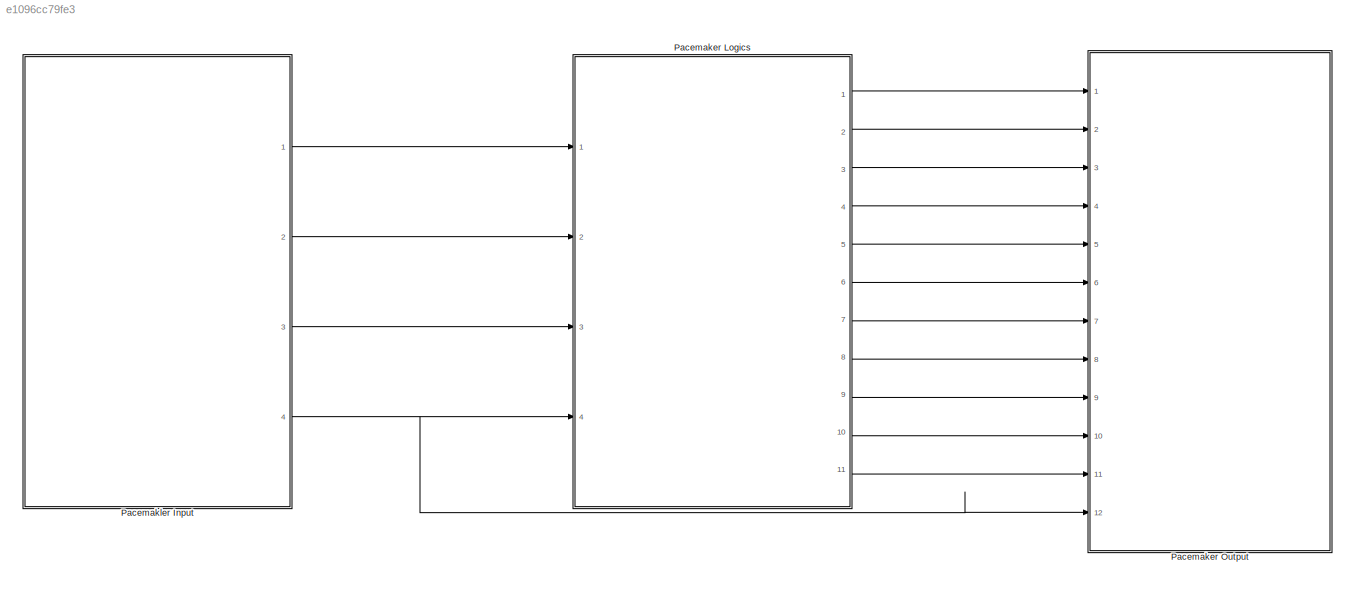
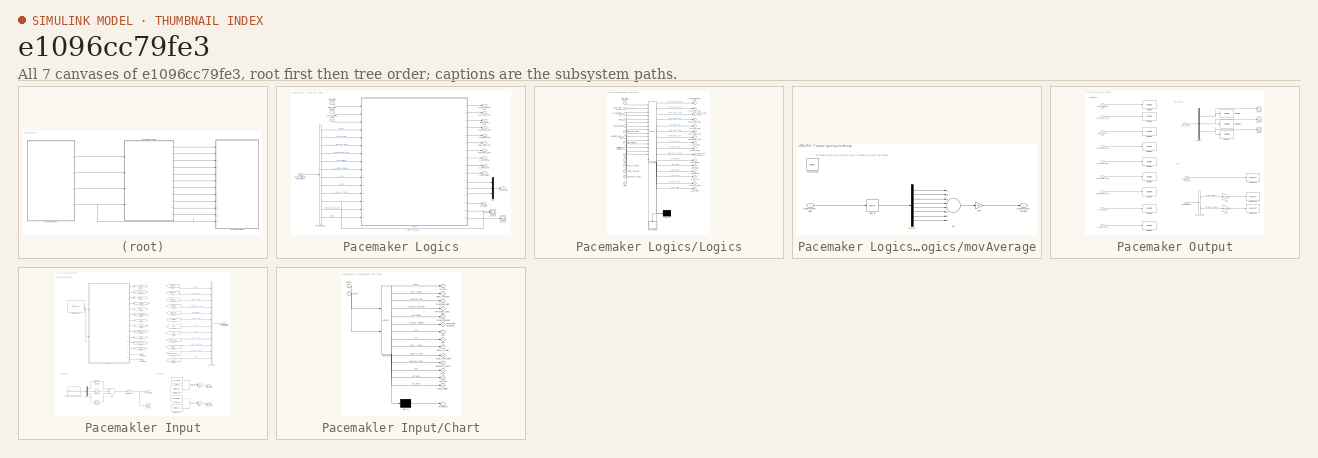
[diagram: thumbnail index - all 7 canvases of the model, root first then tree order]
MODEL slx_e1096cc79fe3
KIND model
CONFIG AbsTol = auto
CONFIG EnableMultiTasking = off
CONFIG FixedStep = 1E-3
CONFIG MaxStep = auto
CONFIG MinStep = auto
CONFIG RelTol = 1e-3
CONFIG SampleTimeConstraint = Unconstrained
CONFIG Solver = FixedStepAuto
CONFIG SolverName = FixedStepAuto
CONFIG StartTime = 0.0
CONFIG StopTime = 100
BLOCK [SubSystem] Pacemaker Logics
  Ports = [4, 11]
  RequestExecContextInheritance = off
BLOCK [Outport] Pacemaker Logics/ATRIAL_PWM
  IconDisplay = Port number
  Port = 10
BLOCK [Inport] Pacemaker Logics/ATR_CMR_DETECT
  IconDisplay = Port number
BLOCK [Outport] Pacemaker Logics/ATR_GND_CTRL
  IconDisplay = Port number
  Port = 5
BLOCK [Outport] Pacemaker Logics/ATR_PACE_CTRL
  IconDisplay = Port number
  Port = 2
BLOCK [Inport] Pacemaker Logics/Accelerometer_Value
  IconDisplay = Port number
  Port = 3
BLOCK [BusSelector] Pacemaker Logics/Bus Selector1
  OutputAsBus = off
  OutputSignals = MODE,lower_rate_limit,atrial_pulse_width,ventricular_pulse_width,atrial_amplitude,ventricular_amplitude,ARP,VRP,Fixed_AV_Delay,Activity_Threshold,Response_Factor,MSR
  Ports = [1, 12]
BLOCK [Outport] Pacemaker Logics/FRONTEND_CTRL
  IconDisplay = Port number
  Port = 7
BLOCK [Outport] Pacemaker Logics/LED_STATE
  IconDisplay = Port number
  Port = 11
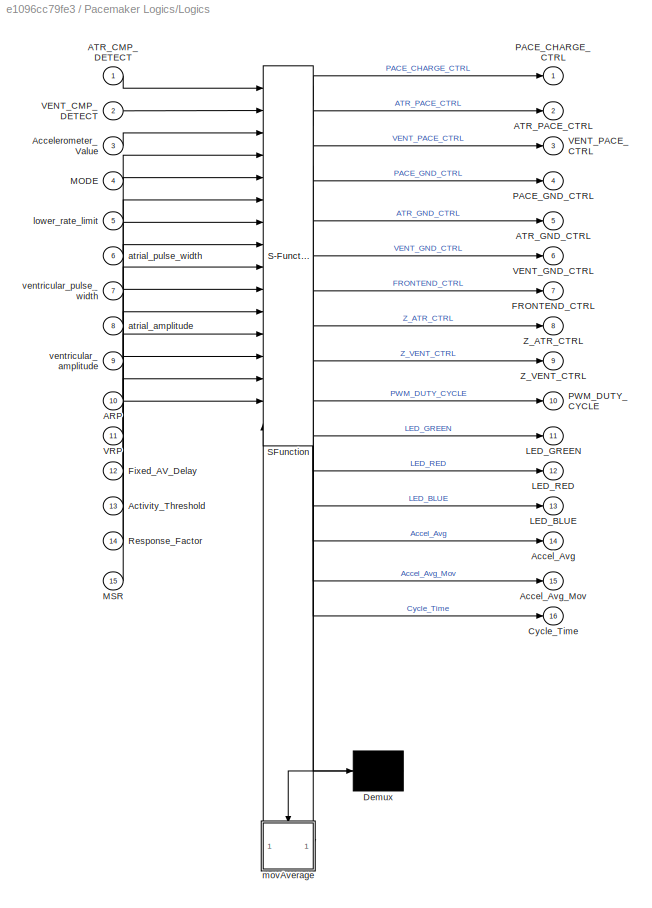
BLOCK [SubSystem] Pacemaker Logics/Logics
  ErrorFcn = Stateflow.Translate.translate
  PermitHierarchicalResolution = ExplicitOnly
  Ports = [15, 16]
  RequestExecContextInheritance = off
  SFBlockType = Chart
  TreatAsAtomicUnit = on
BLOCK [Demux] Pacemaker Logics/Logics/ Demux 
  Outputs = 1
  Ports = [1, 1]
BLOCK [S-Function] Pacemaker Logics/Logics/ SFunction 
  EnableBusSupport = on
  FunctionName = sf_sfun
  PortCounts = [16 18]
  Ports = [16, 18]
  SFcnIsStateOwnerBlock = off
  SFunctionDeploymentMode = off
  Tag = Stateflow S-Function Pacemaker_New 3
BLOCK [Inport] Pacemaker Logics/Logics/ARP
  IconDisplay = Port number
  Port = 10
BLOCK [Inport] Pacemaker Logics/Logics/ATR_CMP_DETECT
  IconDisplay = Port number
BLOCK [Outport] Pacemaker Logics/Logics/ATR_GND_CTRL
  IconDisplay = Port number
  Port = 5
BLOCK [Outport] Pacemaker Logics/Logics/ATR_PACE_CTRL
  IconDisplay = Port number
  Port = 2
BLOCK [Outport] Pacemaker Logics/Logics/Accel_Avg
  IconDisplay = Port number
  Port = 14
BLOCK [Outport] Pacemaker Logics/Logics/Accel_Avg_Mov
  IconDisplay = Port number
  Port = 15
BLOCK [Inport] Pacemaker Logics/Logics/Accelerometer_Value
  IconDisplay = Port number
  Port = 3
BLOCK [Inport] Pacemaker Logics/Logics/Activity_Threshold
  IconDisplay = Port number
  Port = 13
BLOCK [Outport] Pacemaker Logics/Logics/Cycle_Time
  IconDisplay = Port number
  Port = 16
BLOCK [Outport] Pacemaker Logics/Logics/FRONTEND_CTRL
  IconDisplay = Port number
  Port = 7
BLOCK [Inport] Pacemaker Logics/Logics/Fixed_AV_Delay
  IconDisplay = Port number
  Port = 12
BLOCK [Outport] Pacemaker Logics/Logics/LED_BLUE
  IconDisplay = Port number
  Port = 13
BLOCK [Outport] Pacemaker Logics/Logics/LED_GREEN
  IconDisplay = Port number
  Port = 11
BLOCK [Outport] Pacemaker Logics/Logics/LED_RED
  IconDisplay = Port number
  Port = 12
BLOCK [Inport] Pacemaker Logics/Logics/MODE
  IconDisplay = Port number
  Port = 4
BLOCK [Inport] Pacemaker Logics/Logics/MSR
  IconDisplay = Port number
  Port = 15
BLOCK [Outport] Pacemaker Logics/Logics/PACE_CHARGE_CTRL
  IconDisplay = Port number
BLOCK [Outport] Pacemaker Logics/Logics/PACE_GND_CTRL
  IconDisplay = Port number
  Port = 4
BLOCK [Outport] Pacemaker Logics/Logics/PWM_DUTY_CYCLE
  IconDisplay = Port number
  Port = 10
BLOCK [Inport] Pacemaker Logics/Logics/Response_Factor
  IconDisplay = Port number
  Port = 14
BLOCK [Inport] Pacemaker Logics/Logics/VENT_CMP_DETECT
  IconDisplay = Port number
  Port = 2
BLOCK [Outport] Pacemaker Logics/Logics/VENT_GND_CTRL
  IconDisplay = Port number
  Port = 6
BLOCK [Outport] Pacemaker Logics/Logics/VENT_PACE_CTRL
  IconDisplay = Port number
  Port = 3
BLOCK [Inport] Pacemaker Logics/Logics/VRP
  IconDisplay = Port number
  Port = 11
BLOCK [Outport] Pacemaker Logics/Logics/Z_ATR_CTRL
  IconDisplay = Port number
  Port = 8
BLOCK [Outport] Pacemaker Logics/Logics/Z_VENT_CTRL
  IconDisplay = Port number
  Port = 9
BLOCK [Inport] Pacemaker Logics/Logics/atrial_amplitude
  IconDisplay = Port number
  Port = 8
BLOCK [Inport] Pacemaker Logics/Logics/atrial_pulse_width
  IconDisplay = Port number
  Port = 6
BLOCK [Inport] Pacemaker Logics/Logics/lower_rate_limit
  IconDisplay = Port number
  Port = 5
BLOCK [SubSystem] Pacemaker Logics/Logics/movAverage
  Ports = [1, 1, 0, 1]
  PreDeleteFcn = Stateflow.SLINSF.SimulinkMan.removePreDeleteFcn
  RequestExecContextInheritance = off
  UndoDeleteFcn = Stateflow.SLINSF.SimulinkMan.restorePreDeleteFcn
BLOCK [Outport] Pacemaker Logics/Logics/movAverage/Accelerometer_Average
  IconDisplay = Port number
  PortDimensions = 1
BLOCK [Inport] Pacemaker Logics/Logics/movAverage/Accelerometer_Value
  IconDisplay = Port number
  OutDataTypeStr = double
  PortDimensions = 1
  SignalType = real
  VarSizeSig = No
BLOCK [Sum] Pacemaker Logics/Logics/movAverage/Add
  InputSameDT = off
  Inputs = ++++++++
  OutDataTypeStr = Inherit: Inherit via internal rule
  Ports = [8, 1]
  SaturateOnIntegerOverflow = off
BLOCK [Buffer] Pacemaker Logics/Logics/movAverage/Buffer
  N = 8
  OutputFrames = off
  V = 7
  ic = 1
BLOCK [Demux] Pacemaker Logics/Logics/movAverage/Demux
  DisplayOption = bar
  Outputs = 8
  Ports = [1, 8]
BLOCK [Gain] Pacemaker Logics/Logics/movAverage/Gain
  Gain = 1/8
  OutDataTypeStr = Inherit: Inherit via internal rule
  ParamDataTypeStr = Inherit: Inherit via internal rule
  SaturateOnIntegerOverflow = off
BLOCK [TriggerPort] Pacemaker Logics/Logics/movAverage/movAverage 
  CopyFcn = Stateflow.SLINSF.SimulinkMan.removeBlockPreDeleteFcn
  Ports = []
  PreDeleteFcn = Stateflow.SLINSF.SimulinkMan.unsafePredeleteFcn
  StatesWhenEnabling = held
  TriggerType = function-call
  VariantControl = (inherit)
BLOCK [Inport] Pacemaker Logics/Logics/ventricular_amplitude
  IconDisplay = Port number
  Port = 9
BLOCK [Inport] Pacemaker Logics/Logics/ventricular_pulse_width
  IconDisplay = Port number
  Port = 7
BLOCK [Mux] Pacemaker Logics/Mux
  DisplayOption = bar
  Inputs = 3
  Ports = [3, 1]
BLOCK [Outport] Pacemaker Logics/PACE_CHARGE_CTRL
  IconDisplay = Port number
BLOCK [Outport] Pacemaker Logics/PACE_GND_CTRL
  IconDisplay = Port number
  Port = 4
BLOCK [Scope] Pacemaker Logics/Scope
  Floating = off
  NumInputPorts = 2
  Ports = [2]
  ScopeSpecificationString = Simulink.scopes.TimeScopeBlockCfg('CurrentConfiguration', extmgr.ConfigurationSet(extmgr.Configuration('Core','General UI',true),extmgr.Configuration('Core','Source UI',true),extmgr.Configuration('Sources','WiredSimulink',true,'DataLoggingVariableName','ScopeData2'),extmgr.Configuration('Visuals','Time Domain',true,'SerializedDisplays',{struct('MinYLimReal','-0.1875','MaxYLimReal','1.6875','YLabel...<+1451ch>
BLOCK [Scope] Pacemaker Logics/Scope1
  Floating = off
  NumInputPorts = 1
  Ports = [1]
  ScopeSpecificationString = Simulink.scopes.TimeScopeBlockCfg('CurrentConfiguration', extmgr.ConfigurationSet(extmgr.Configuration('Core','General UI',true),extmgr.Configuration('Core','Source UI',true),extmgr.Configuration('Sources','WiredSimulink',true,'DataLoggingVariableName','ScopeData3'),extmgr.Configuration('Visuals','Time Domain',true,'SerializedDisplays',{struct('MinYLimReal','900.00000','MaxYLimReal','1100.00000','...<+1449ch>
BLOCK [Terminator] Pacemaker Logics/Terminator
BLOCK [Inport] Pacemaker Logics/VENT_CMP_DETECT
  IconDisplay = Port number
  Port = 2
BLOCK [Outport] Pacemaker Logics/VENT_GND_CTRL
  IconDisplay = Port number
  Port = 6
BLOCK [Outport] Pacemaker Logics/VENT_PACE_CTRL
  IconDisplay = Port number
  Port = 3
BLOCK [Outport] Pacemaker Logics/Z_ATR_CTRL
  IconDisplay = Port number
  Port = 8
BLOCK [Outport] Pacemaker Logics/Z_VENT_CTRL
  IconDisplay = Port number
  Port = 9
BLOCK [Inport] Pacemaker Logics/programmable_parameters
  IconDisplay = Port number
  Port = 4
BLOCK [SubSystem] Pacemaker Output
  Ports = [12]
  RequestExecContextInheritance = off
BLOCK [Inport] Pacemaker Output/ATR_GND_CTRL
  IconDisplay = Port number
  Port = 5
BLOCK [Inport] Pacemaker Output/ATR_PACE_CTRL
  IconDisplay = Port number
  Port = 2
BLOCK [BusSelector] Pacemaker Output/Bus Selector1
  OutputAsBus = off
  OutputSignals = atrial_amplitude,ventricular_amplitude
  Ports = [1, 2]
BLOCK [Demux] Pacemaker Output/Demux
  DisplayOption = bar
  Outputs = 3
  Ports = [1, 3]
BLOCK [Reference] Pacemaker Output/Digital Write  REF=frdmk64flib/Digital Write
  Ports = [1]
  SourceBlock = frdmk64flib/Digital Write
  SourceProductBaseCode = EC_FRDM_K64F
  SourceProductName = Simulink Coder Support Package for NXP FRDM-K64F Board
  SourceType = freedomk64f.DigitalWrite
BLOCK [Reference] Pacemaker Output/Digital Write1  REF=frdmk64flib/Digital Write
  Ports = [1]
  SourceBlock = frdmk64flib/Digital Write
  SourceProductBaseCode = EC_FRDM_K64F
  SourceProductName = Simulink Coder Support Package for NXP FRDM-K64F Board
  SourceType = freedomk64f.DigitalWrite
BLOCK [Reference] Pacemaker Output/Digital Write10  REF=frdmk64flib/Digital Write
  Ports = [1]
  SourceBlock = frdmk64flib/Digital Write
  SourceProductBaseCode = EC_FRDM_K64F
  SourceProductName = Simulink Coder Support Package for NXP FRDM-K64F Board
  SourceType = freedomk64f.DigitalWrite
BLOCK [Reference] Pacemaker Output/Digital Write11  REF=frdmk64flib/Digital Write
  Ports = [1]
  SourceBlock = frdmk64flib/Digital Write
  SourceProductBaseCode = EC_FRDM_K64F
  SourceProductName = Simulink Coder Support Package for NXP FRDM-K64F Board
  SourceType = freedomk64f.DigitalWrite
BLOCK [Reference] Pacemaker Output/Digital Write2  REF=frdmk64flib/Digital Write
  Ports = [1]
  SourceBlock = frdmk64flib/Digital Write
  SourceProductBaseCode = EC_FRDM_K64F
  SourceProductName = Simulink Coder Support Package for NXP FRDM-K64F Board
  SourceType = freedomk64f.DigitalWrite
BLOCK [Reference] Pacemaker Output/Digital Write3  REF=frdmk64flib/Digital Write
  Ports = [1]
  SourceBlock = frdmk64flib/Digital Write
  SourceProductBaseCode = EC_FRDM_K64F
  SourceProductName = Simulink Coder Support Package for NXP FRDM-K64F Board
  SourceType = freedomk64f.DigitalWrite
BLOCK [Reference] Pacemaker Output/Digital Write4  REF=frdmk64flib/Digital Write
  Ports = [1]
  SourceBlock = frdmk64flib/Digital Write
  SourceProductBaseCode = EC_FRDM_K64F
  SourceProductName = Simulink Coder Support Package for NXP FRDM-K64F Board
  SourceType = freedomk64f.DigitalWrite
BLOCK [Reference] Pacemaker Output/Digital Write5  REF=frdmk64flib/Digital Write
  Ports = [1]
  SourceBlock = frdmk64flib/Digital Write
  SourceProductBaseCode = EC_FRDM_K64F
  SourceProductName = Simulink Coder Support Package for NXP FRDM-K64F Board
  SourceType = freedomk64f.DigitalWrite
BLOCK [Reference] Pacemaker Output/Digital Write6  REF=frdmk64flib/Digital Write
  Ports = [1]
  SourceBlock = frdmk64flib/Digital Write
  SourceProductBaseCode = EC_FRDM_K64F
  SourceProductName = Simulink Coder Support Package for NXP FRDM-K64F Board
  SourceType = freedomk64f.DigitalWrite
BLOCK [Reference] Pacemaker Output/Digital Write7  REF=frdmk64flib/Digital Write
  Ports = [1]
  SourceBlock = frdmk64flib/Digital Write
  SourceProductBaseCode = EC_FRDM_K64F
  SourceProductName = Simulink Coder Support Package for NXP FRDM-K64F Board
  SourceType = freedomk64f.DigitalWrite
BLOCK [Reference] Pacemaker Output/Digital Write8  REF=frdmk64flib/Digital Write
  Ports = [1]
  SourceBlock = frdmk64flib/Digital Write
  SourceProductBaseCode = EC_FRDM_K64F
  SourceProductName = Simulink Coder Support Package for NXP FRDM-K64F Board
  SourceType = freedomk64f.DigitalWrite
BLOCK [Reference] Pacemaker Output/Digital Write9  REF=frdmk64flib/Digital Write
  Ports = [1]
  SourceBlock = frdmk64flib/Digital Write
  SourceProductBaseCode = EC_FRDM_K64F
  SourceProductName = Simulink Coder Support Package for NXP FRDM-K64F Board
  SourceType = freedomk64f.DigitalWrite
BLOCK [Inport] Pacemaker Output/FRONTEND_CTRL
  IconDisplay = Port number
  Port = 7
BLOCK [Gain] Pacemaker Output/Gain
  Gain = 1/5*100
  OutDataTypeStr = Inherit: Inherit via internal rule
  ParamDataTypeStr = Inherit: Inherit via internal rule
  SaturateOnIntegerOverflow = off
BLOCK [Gain] Pacemaker Output/Gain1
  Gain = 1/5*100
  OutDataTypeStr = Inherit: Inherit via internal rule
  ParamDataTypeStr = Inherit: Inherit via internal rule
  SaturateOnIntegerOverflow = off
BLOCK [Inport] Pacemaker Output/LED_STATE
  IconDisplay = Port number
  Port = 11
BLOCK [Inport] Pacemaker Output/PACE_CHARGE_CTRL
  IconDisplay = Port number
BLOCK [Inport] Pacemaker Output/PACE_GND_CTRL
  IconDisplay = Port number
  Port = 4
BLOCK [Reference] Pacemaker Output/PWM Output2  REF=frdmk64flib/PWM Output
  Ports = [1]
  SourceBlock = frdmk64flib/PWM Output
  SourceProductBaseCode = EC_FRDM_K64F
  SourceProductName = Simulink Coder Support Package for NXP FRDM-K64F Board
  SourceType = freedomk64f.PWMOutput
BLOCK [Reference] Pacemaker Output/PWM Output3  REF=frdmk64flib/PWM Output
  Ports = [1]
  SourceBlock = frdmk64flib/PWM Output
  SourceProductBaseCode = EC_FRDM_K64F
  SourceProductName = Simulink Coder Support Package for NXP FRDM-K64F Board
  SourceType = freedomk64f.PWMOutput
BLOCK [Reference] Pacemaker Output/PWM Output4  REF=frdmk64flib/PWM Output
  Ports = [1]
  SourceBlock = frdmk64flib/PWM Output
  SourceProductBaseCode = EC_FRDM_K64F
  SourceProductName = Simulink Coder Support Package for NXP FRDM-K64F Board
  SourceType = freedomk64f.PWMOutput
BLOCK [Inport] Pacemaker Output/PWM_DUTY_CYCLE
  IconDisplay = Port number
  Port = 10
BLOCK [Inport] Pacemaker Output/Programmable 
  IconDisplay = Port number
  Port = 12
BLOCK [Scope] Pacemaker Output/Scope
  Floating = off
  NumInputPorts = 1
  Ports = [1]
  ScopeSpecificationString = Simulink.scopes.TimeScopeBlockCfg('CurrentConfiguration', extmgr.ConfigurationSet(extmgr.Configuration('Core','General UI',true),extmgr.Configuration('Core','Source UI',true),extmgr.Configuration('Sources','WiredSimulink',true,'DataLoggingVariableName','ScopeData1'),extmgr.Configuration('Visuals','Time Domain',true,'SerializedDisplays',{struct('MinYLimReal','-0.125','MaxYLimReal','1.125','YLabelRe...<+1468ch>
BLOCK [Scope] Pacemaker Output/Scope1
  Floating = off
  NumInputPorts = 1
  Ports = [1]
  ScopeSpecificationString = Simulink.scopes.TimeScopeBlockCfg('CurrentConfiguration', extmgr.ConfigurationSet(extmgr.Configuration('Core','General UI',true),extmgr.Configuration('Core','Source UI',true),extmgr.Configuration('Sources','WiredSimulink',true,'DataLoggingVariableName','ScopeData1'),extmgr.Configuration('Visuals','Time Domain',true,'SerializedDisplays',{struct('MinYLimReal','-0.125','MaxYLimReal','1.125','YLabelRe...<+1467ch>
BLOCK [Scope] Pacemaker Output/Scope2
  Floating = off
  NumInputPorts = 1
  Ports = [1]
  ScopeSpecificationString = Simulink.scopes.TimeScopeBlockCfg('CurrentConfiguration', extmgr.ConfigurationSet(extmgr.Configuration('Core','General UI',true),extmgr.Configuration('Core','Source UI',true),extmgr.Configuration('Sources','WiredSimulink',true,'DataLoggingVariableName','ScopeData2'),extmgr.Configuration('Visuals','Time Domain',true,'SerializedDisplays',{struct('MinYLimReal','-0.125','MaxYLimReal','1.125','YLabelRe...<+1804ch>
BLOCK [Inport] Pacemaker Output/VENT_GND_CTRL
  IconDisplay = Port number
  Port = 6
BLOCK [Inport] Pacemaker Output/VENT_PACE_CTRL
  IconDisplay = Port number
  Port = 3
BLOCK [Inport] Pacemaker Output/Z_ATR_CTRL
  IconDisplay = Port number
  Port = 8
BLOCK [Inport] Pacemaker Output/Z_VENT_CTRL
  IconDisplay = Port number
  Port = 9
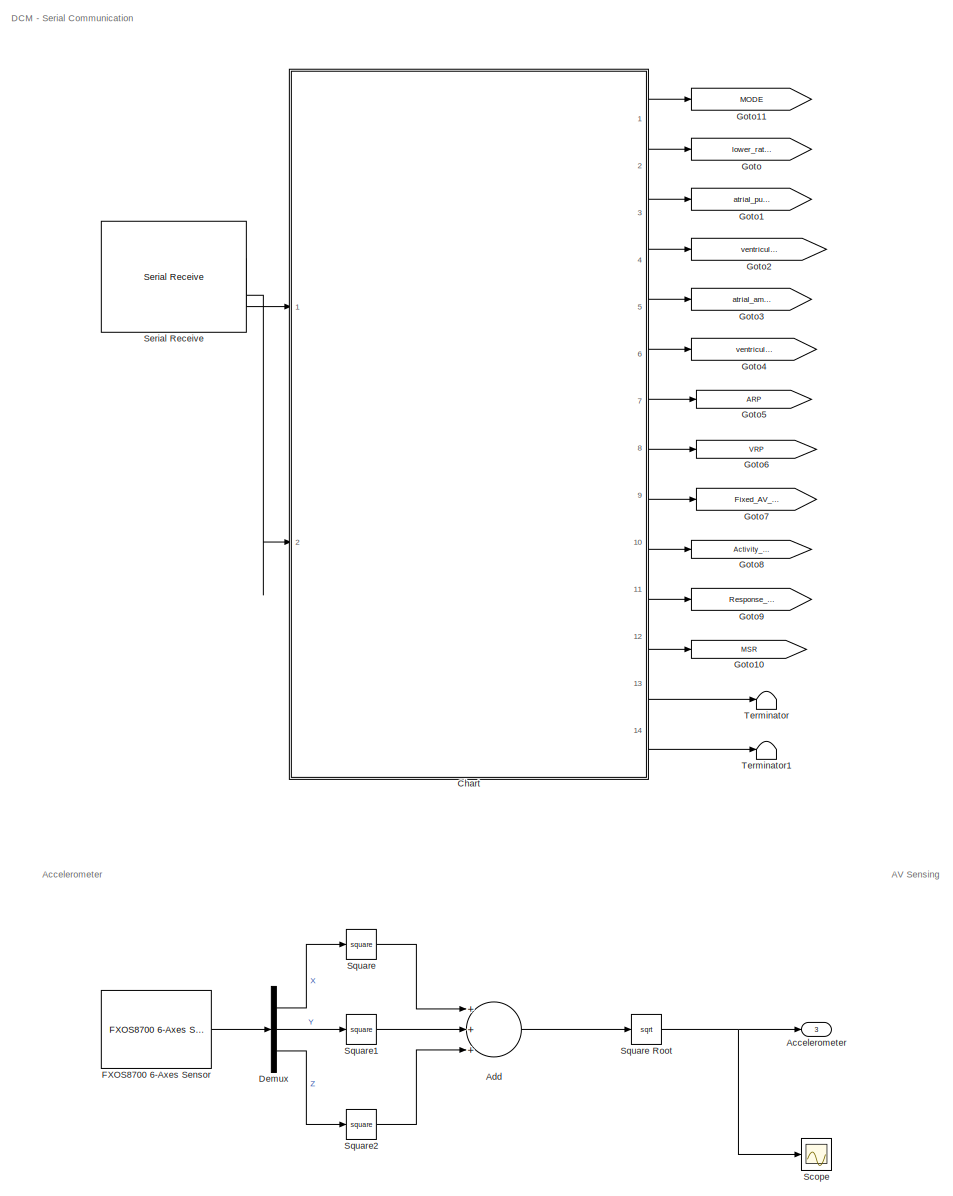
[diagram: Pacemakler Input - part 1/2, left side, full height]
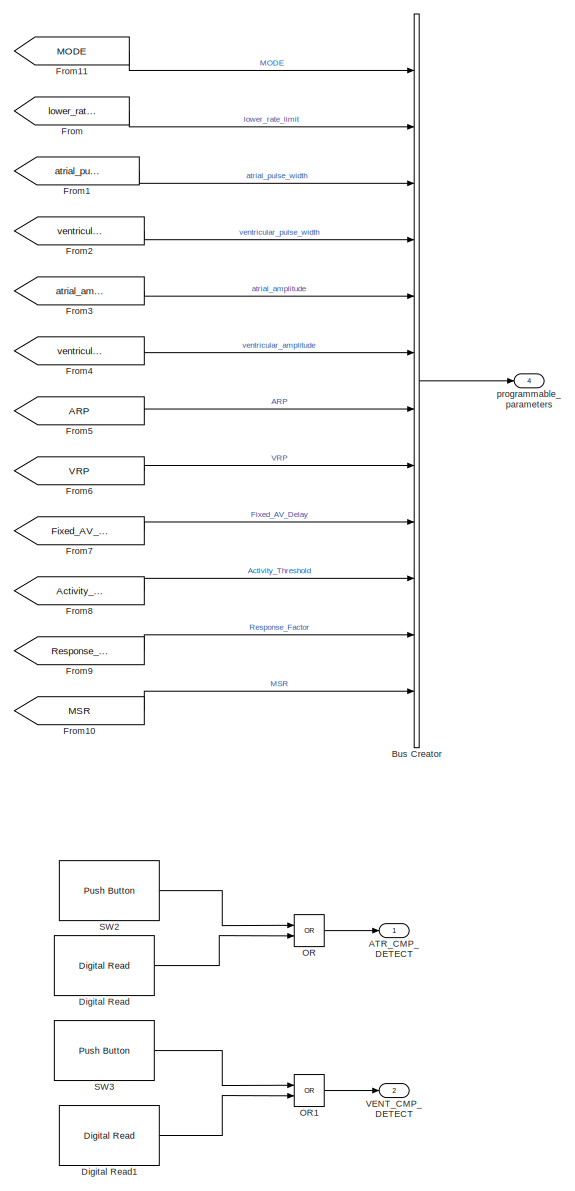
[diagram: Pacemakler Input - part 2/2, right side, full height]
BLOCK [SubSystem] Pacemakler Input
  Ports = [0, 4]
  RequestExecContextInheritance = off
BLOCK [Outport] Pacemakler Input/ATR_CMP_DETECT
  IconDisplay = Port number
BLOCK [Outport] Pacemakler Input/Accelerometer 
  IconDisplay = Port number
  Port = 3
BLOCK [Sum] Pacemakler Input/Add
  InputSameDT = off
  Inputs = +++
  OutDataTypeStr = Inherit: Inherit via internal rule
  Ports = [3, 1]
  SaturateOnIntegerOverflow = off
BLOCK [BusCreator] Pacemakler Input/Bus Creator
  DisplayOption = bar
  InheritFromInputs = on
  Inputs = 12
  Ports = [12, 1]
BLOCK [SubSystem] Pacemakler Input/Chart
  BlockKeywords = __PRM__SERIALIZED__DATA__:Stateflow Chart,Stateflow Diagram
  ErrorFcn = Stateflow.Translate.translate
  PermitHierarchicalResolution = ExplicitOnly
  Ports = [2, 14]
  RequestExecContextInheritance = off
  SFBlockType = Chart
  TreatAsAtomicUnit = on
BLOCK [Demux] Pacemakler Input/Chart/ Demux 
  Outputs = 1
  Ports = [1, 1]
BLOCK [S-Function] Pacemakler Input/Chart/ SFunction 
  EnableBusSupport = on
  FunctionName = sf_sfun
  PortCounts = [2 15]
  Ports = [2, 15]
  SFcnIsStateOwnerBlock = off
  SFunctionDeploymentMode = off
  Tag = Stateflow S-Function Pacemaker_New 1
BLOCK [Terminator] Pacemakler Input/Chart/ Terminator 
BLOCK [Outport] Pacemakler Input/Chart/ARP
  IconDisplay = Port number
  Port = 7
BLOCK [Outport] Pacemakler Input/Chart/Activity_Threshold
  IconDisplay = Port number
  Port = 10
BLOCK [Outport] Pacemakler Input/Chart/Fixed_AV_Delay
  IconDisplay = Port number
  Port = 9
BLOCK [Outport] Pacemakler Input/Chart/LED_BLUE
  IconDisplay = Port number
  Port = 13
BLOCK [Outport] Pacemakler Input/Chart/LED_GREEN
  IconDisplay = Port number
  Port = 14
BLOCK [Outport] Pacemakler Input/Chart/MODE
  IconDisplay = Port number
BLOCK [Outport] Pacemakler Input/Chart/MSR
  IconDisplay = Port number
  Port = 12
BLOCK [Outport] Pacemakler Input/Chart/Response_Factor
  IconDisplay = Port number
  Port = 11
BLOCK [Outport] Pacemakler Input/Chart/VRP
  IconDisplay = Port number
  Port = 8
BLOCK [Outport] Pacemakler Input/Chart/atrial_amplitude
  IconDisplay = Port number
  Port = 5
BLOCK [Outport] Pacemakler Input/Chart/atrial_pulse_width
  IconDisplay = Port number
  Port = 3
BLOCK [Outport] Pacemakler Input/Chart/lower_rate_limit
  IconDisplay = Port number
  Port = 2
BLOCK [Inport] Pacemakler Input/Chart/rxdata
  IconDisplay = Port number
BLOCK [Inport] Pacemakler Input/Chart/status
  IconDisplay = Port number
  Port = 2
BLOCK [Outport] Pacemakler Input/Chart/ventricular_amplitude
  IconDisplay = Port number
  Port = 6
BLOCK [Outport] Pacemakler Input/Chart/ventricular_pulse_width
  IconDisplay = Port number
  Port = 4
BLOCK [Demux] Pacemakler Input/Demux
  DisplayOption = bar
  Outputs = 3
  Ports = [1, 3]
BLOCK [Reference] Pacemakler Input/Digital Read  REF=frdmk64flib/Digital Read
  Ports = [0, 1]
  SourceBlock = frdmk64flib/Digital Read
  SourceProductBaseCode = EC_FRDM_K64F
  SourceProductName = Simulink Coder Support Package for NXP FRDM-K64F Board
  SourceType = freedomk64f.DigitalRead
BLOCK [Reference] Pacemakler Input/Digital Read1  REF=frdmk64flib/Digital Read
  Ports = [0, 1]
  SourceBlock = frdmk64flib/Digital Read
  SourceProductBaseCode = EC_FRDM_K64F
  SourceProductName = Simulink Coder Support Package for NXP FRDM-K64F Board
  SourceType = freedomk64f.DigitalRead
BLOCK [Reference] Pacemakler Input/FXOS8700 6-Axes Sensor  REF=frdmk64flib/FXOS8700 6-Axes Sensor
  Ports = [0, 1]
  SourceBlock = frdmk64flib/FXOS8700 6-Axes Sensor
  SourceProductBaseCode = EC_FRDM_K64F
  SourceProductName = Simulink Coder Support Package for NXP FRDM-K64F Board
  SourceType = freedomk64f.fxos8700
BLOCK [From] Pacemakler Input/From
  GotoTag = lower_rate_limit
BLOCK [From] Pacemakler Input/From1
  GotoTag = atrial_pulse_width
BLOCK [From] Pacemakler Input/From10
  GotoTag = MSR
BLOCK [From] Pacemakler Input/From11
  GotoTag = MODE
BLOCK [From] Pacemakler Input/From2
  GotoTag = ventricular_pulse_width
BLOCK [From] Pacemakler Input/From3
  GotoTag = atrial_amplitude
BLOCK [From] Pacemakler Input/From4
  GotoTag = ventricular_amplitude
BLOCK [From] Pacemakler Input/From5
  GotoTag = ARP
BLOCK [From] Pacemakler Input/From6
  GotoTag = VRP
BLOCK [From] Pacemakler Input/From7
  GotoTag = Fixed_AV_Delay
BLOCK [From] Pacemakler Input/From8
  GotoTag = Activity_Threshold
BLOCK [From] Pacemakler Input/From9
  GotoTag = Response_Factor
BLOCK [Goto] Pacemakler Input/Goto
  GotoTag = lower_rate_limit
BLOCK [Goto] Pacemakler Input/Goto1
  GotoTag = atrial_pulse_width
BLOCK [Goto] Pacemakler Input/Goto10
  GotoTag = MSR
BLOCK [Goto] Pacemakler Input/Goto11
  GotoTag = MODE
BLOCK [Goto] Pacemakler Input/Goto2
  GotoTag = ventricular_pulse_width
BLOCK [Goto] Pacemakler Input/Goto3
  GotoTag = atrial_amplitude
BLOCK [Goto] Pacemakler Input/Goto4
  GotoTag = ventricular_amplitude
BLOCK [Goto] Pacemakler Input/Goto5
  GotoTag = ARP
BLOCK [Goto] Pacemakler Input/Goto6
  GotoTag = VRP
BLOCK [Goto] Pacemakler Input/Goto7
  GotoTag = Fixed_AV_Delay
BLOCK [Goto] Pacemakler Input/Goto8
  GotoTag = Activity_Threshold
BLOCK [Goto] Pacemakler Input/Goto9
  GotoTag = Response_Factor
BLOCK [Logic] Pacemakler Input/OR
  AllPortsSameDT = off
  IconShape = distinctive
  Operator = OR
  OutDataTypeStr = boolean
  Ports = [2, 1]
BLOCK [Logic] Pacemakler Input/OR1
  AllPortsSameDT = off
  IconShape = distinctive
  Operator = OR
  OutDataTypeStr = boolean
  Ports = [2, 1]
BLOCK [Reference] Pacemakler Input/SW2  REF=frdmk64flib/Push Button
  Ports = [0, 1]
  SourceBlock = frdmk64flib/Push Button
  SourceProductBaseCode = EC_FRDM_K64F
  SourceProductName = Simulink Coder Support Package for NXP FRDM-K64F Board
  SourceType = freedomk64f.PushButton
BLOCK [Reference] Pacemakler Input/SW3  REF=frdmk64flib/Push Button
  Ports = [0, 1]
  SourceBlock = frdmk64flib/Push Button
  SourceProductBaseCode = EC_FRDM_K64F
  SourceProductName = Simulink Coder Support Package for NXP FRDM-K64F Board
  SourceType = freedomk64f.PushButton
BLOCK [Scope] Pacemakler Input/Scope
  Floating = off
  NumInputPorts = 1
  Ports = [1]
  ScopeSpecificationString = Simulink.scopes.TimeScopeBlockCfg('CurrentConfiguration', extmgr.ConfigurationSet(extmgr.Configuration('Core','General UI',true),extmgr.Configuration('Core','Source UI',true),extmgr.Configuration('Sources','WiredSimulink',true,'DataLoggingVariableName','ScopeData1'),extmgr.Configuration('Visuals','Time Domain',true,'SerializedDisplays',{struct('MinYLimReal','-1.00000','MaxYLimReal','1.00000','YLab...<+1424ch>
BLOCK [Reference] Pacemakler Input/Serial Receive  REF=frdmk64flib/Serial Receive
  Ports = [0, 2]
  SourceBlock = frdmk64flib/Serial Receive
  SourceProductBaseCode = EC_FRDM_K64F
  SourceProductName = Simulink Coder Support Package for NXP FRDM-K64F Board
  SourceType = freedomk64f.SCIRead
BLOCK [Math] Pacemakler Input/Square
  Operator = square
  Ports = [1, 1]
BLOCK [Sqrt] Pacemakler Input/Square Root
BLOCK [Math] Pacemakler Input/Square1
  Operator = square
  Ports = [1, 1]
BLOCK [Math] Pacemakler Input/Square2
  Operator = square
  Ports = [1, 1]
BLOCK [Terminator] Pacemakler Input/Terminator
BLOCK [Terminator] Pacemakler Input/Terminator1
BLOCK [Outport] Pacemakler Input/VENT_CMP_DETECT
  IconDisplay = Port number
  Port = 2
BLOCK [Outport] Pacemakler Input/programmable_parameters
  IconDisplay = Port number
  Port = 4
ANNOTATION Pacemaker Logics/Logics/movAverage: This simulink function uses the buffer block to calculate and output the moving average of the accelerometer value over 8 pacing cycles.
ANNOTATION Pacemaker Output: Debug LEDs
ANNOTATION Pacemaker Output: Digital Write (Pins)
ANNOTATION Pacemaker Output: PWM
ANNOTATION Pacemakler Input: AV Sensing
ANNOTATION Pacemakler Input: Accelerometer
ANNOTATION Pacemakler Input: DCM - Serial Communication
LINE Pacemaker Logics/ATR_CMR_DETECT:1 -> Pacemaker Logics/Logics:1
LINE Pacemaker Logics/Accelerometer_Value:1 -> Pacemaker Logics/Logics:3
LINE Pacemaker Logics/Bus Selector1:1 -> Pacemaker Logics/Logics:4
NET Pacemaker Logics/Bus Selector1:10 -> Pacemaker Logics/Logics:13, Pacemaker Logics/Scope:2
LINE Pacemaker Logics/Bus Selector1:11 -> Pacemaker Logics/Logics:14
LINE Pacemaker Logics/Bus Selector1:12 -> Pacemaker Logics/Logics:15
LINE Pacemaker Logics/Bus Selector1:2 -> Pacemaker Logics/Logics:5
LINE Pacemaker Logics/Bus Selector1:3 -> Pacemaker Logics/Logics:6
LINE Pacemaker Logics/Bus Selector1:4 -> Pacemaker Logics/Logics:7
LINE Pacemaker Logics/Bus Selector1:5 -> Pacemaker Logics/Logics:8
LINE Pacemaker Logics/Bus Selector1:6 -> Pacemaker Logics/Logics:9
LINE Pacemaker Logics/Bus Selector1:7 -> Pacemaker Logics/Logics:10
LINE Pacemaker Logics/Bus Selector1:8 -> Pacemaker Logics/Logics:11
LINE Pacemaker Logics/Bus Selector1:9 -> Pacemaker Logics/Logics:12
LINE Pacemaker Logics/Logics:1 -> Pacemaker Logics/PACE_CHARGE_CTRL:1
LINE Pacemaker Logics/Logics:10 -> Pacemaker Logics/ATRIAL_PWM:1
LINE Pacemaker Logics/Logics:11 -> Pacemaker Logics/Mux:1
LINE Pacemaker Logics/Logics:12 -> Pacemaker Logics/Mux:2
LINE Pacemaker Logics/Logics:13 -> Pacemaker Logics/Mux:3
LINE Pacemaker Logics/Logics:14 -> Pacemaker Logics/Terminator:1
LINE Pacemaker Logics/Logics:15 -> Pacemaker Logics/Scope:1
LINE Pacemaker Logics/Logics:16 -> Pacemaker Logics/Scope1:1
LINE Pacemaker Logics/Logics:2 -> Pacemaker Logics/ATR_PACE_CTRL:1
LINE Pacemaker Logics/Logics:3 -> Pacemaker Logics/VENT_PACE_CTRL:1
LINE Pacemaker Logics/Logics:4 -> Pacemaker Logics/PACE_GND_CTRL:1
LINE Pacemaker Logics/Logics:5 -> Pacemaker Logics/ATR_GND_CTRL:1
LINE Pacemaker Logics/Logics:6 -> Pacemaker Logics/VENT_GND_CTRL:1
LINE Pacemaker Logics/Logics:7 -> Pacemaker Logics/FRONTEND_CTRL:1
LINE Pacemaker Logics/Logics:8 -> Pacemaker Logics/Z_ATR_CTRL:1
LINE Pacemaker Logics/Logics:9 -> Pacemaker Logics/Z_VENT_CTRL:1
LINE Pacemaker Logics/Mux:1 -> Pacemaker Logics/LED_STATE:1
LINE Pacemaker Logics/VENT_CMP_DETECT:1 -> Pacemaker Logics/Logics:2
LINE Pacemaker Logics/programmable_parameters:1 -> Pacemaker Logics/Bus Selector1:1
LINE Pacemaker Logics:1 -> Pacemaker Output:1
LINE Pacemaker Logics:10 -> Pacemaker Output:10
LINE Pacemaker Logics:11 -> Pacemaker Output:11
LINE Pacemaker Logics:2 -> Pacemaker Output:2
LINE Pacemaker Logics:3 -> Pacemaker Output:3
LINE Pacemaker Logics:4 -> Pacemaker Output:4
LINE Pacemaker Logics:5 -> Pacemaker Output:5
LINE Pacemaker Logics:6 -> Pacemaker Output:6
LINE Pacemaker Logics:7 -> Pacemaker Output:7
LINE Pacemaker Logics:8 -> Pacemaker Output:8
LINE Pacemaker Logics:9 -> Pacemaker Output:9
LINE Pacemaker Output/ATR_GND_CTRL:1 -> Pacemaker Output/Digital Write4:1
LINE Pacemaker Output/ATR_PACE_CTRL:1 -> Pacemaker Output/Digital Write1:1
LINE Pacemaker Output/Bus Selector1:1 -> Pacemaker Output/Gain:1
LINE Pacemaker Output/Bus Selector1:2 -> Pacemaker Output/Gain1:1
NET Pacemaker Output/Demux:1 -> Pacemaker Output/Digital Write7:1, Pacemaker Output/Scope2:1
NET Pacemaker Output/Demux:2 -> Pacemaker Output/Digital Write10:1, Pacemaker Output/Scope1:1
NET Pacemaker Output/Demux:3 -> Pacemaker Output/Digital Write11:1, Pacemaker Output/Scope:1
LINE Pacemaker Output/FRONTEND_CTRL:1 -> Pacemaker Output/Digital Write6:1
LINE Pacemaker Output/Gain1:1 -> Pacemaker Output/PWM Output4:1
LINE Pacemaker Output/Gain:1 -> Pacemaker Output/PWM Output3:1
LINE Pacemaker Output/LED_STATE:1 -> Pacemaker Output/Demux:1
LINE Pacemaker Output/PACE_CHARGE_CTRL:1 -> Pacemaker Output/Digital Write:1
LINE Pacemaker Output/PACE_GND_CTRL:1 -> Pacemaker Output/Digital Write3:1
LINE Pacemaker Output/PWM_DUTY_CYCLE:1 -> Pacemaker Output/PWM Output2:1
LINE Pacemaker Output/Programmable :1 -> Pacemaker Output/Bus Selector1:1
LINE Pacemaker Output/VENT_GND_CTRL:1 -> Pacemaker Output/Digital Write5:1
LINE Pacemaker Output/VENT_PACE_CTRL:1 -> Pacemaker Output/Digital Write2:1
LINE Pacemaker Output/Z_ATR_CTRL:1 -> Pacemaker Output/Digital Write8:1
LINE Pacemaker Output/Z_VENT_CTRL:1 -> Pacemaker Output/Digital Write9:1
LINE Pacemakler Input/Add:1 -> Pacemakler Input/Square Root:1
LINE Pacemakler Input/Bus Creator:1 -> Pacemakler Input/programmable_parameters:1
LINE Pacemakler Input/Chart:1 -> Pacemakler Input/Goto11:1
LINE Pacemakler Input/Chart:10 -> Pacemakler Input/Goto8:1
LINE Pacemakler Input/Chart:11 -> Pacemakler Input/Goto9:1
LINE Pacemakler Input/Chart:12 -> Pacemakler Input/Goto10:1
LINE Pacemakler Input/Chart:13 -> Pacemakler Input/Terminator:1
LINE Pacemakler Input/Chart:14 -> Pacemakler Input/Terminator1:1
LINE Pacemakler Input/Chart:2 -> Pacemakler Input/Goto:1
LINE Pacemakler Input/Chart:3 -> Pacemakler Input/Goto1:1
LINE Pacemakler Input/Chart:4 -> Pacemakler Input/Goto2:1
LINE Pacemakler Input/Chart:5 -> Pacemakler Input/Goto3:1
LINE Pacemakler Input/Chart:6 -> Pacemakler Input/Goto4:1
LINE Pacemakler Input/Chart:7 -> Pacemakler Input/Goto5:1
LINE Pacemakler Input/Chart:8 -> Pacemakler Input/Goto6:1
LINE Pacemakler Input/Chart:9 -> Pacemakler Input/Goto7:1
LINE Pacemakler Input/Demux:1 -> Pacemakler Input/Square:1
LINE Pacemakler Input/Demux:2 -> Pacemakler Input/Square1:1
LINE Pacemakler Input/Demux:3 -> Pacemakler Input/Square2:1
LINE Pacemakler Input/Digital Read1:1 -> Pacemakler Input/OR1:2
LINE Pacemakler Input/Digital Read:1 -> Pacemakler Input/OR:2
LINE Pacemakler Input/FXOS8700 6-Axes Sensor:1 -> Pacemakler Input/Demux:1
LINE Pacemakler Input/From10:1 -> Pacemakler Input/Bus Creator:12
LINE Pacemakler Input/From11:1 -> Pacemakler Input/Bus Creator:1
LINE Pacemakler Input/From1:1 -> Pacemakler Input/Bus Creator:3
LINE Pacemakler Input/From2:1 -> Pacemakler Input/Bus Creator:4
LINE Pacemakler Input/From3:1 -> Pacemakler Input/Bus Creator:5
LINE Pacemakler Input/From4:1 -> Pacemakler Input/Bus Creator:6
LINE Pacemakler Input/From5:1 -> Pacemakler Input/Bus Creator:7
LINE Pacemakler Input/From6:1 -> Pacemakler Input/Bus Creator:8
LINE Pacemakler Input/From7:1 -> Pacemakler Input/Bus Creator:9
LINE Pacemakler Input/From8:1 -> Pacemakler Input/Bus Creator:10
LINE Pacemakler Input/From9:1 -> Pacemakler Input/Bus Creator:11
LINE Pacemakler Input/From:1 -> Pacemakler Input/Bus Creator:2
LINE Pacemakler Input/OR1:1 -> Pacemakler Input/VENT_CMP_DETECT:1
LINE Pacemakler Input/OR:1 -> Pacemakler Input/ATR_CMP_DETECT:1
LINE Pacemakler Input/SW2:1 -> Pacemakler Input/OR:1
LINE Pacemakler Input/SW3:1 -> Pacemakler Input/OR1:1
LINE Pacemakler Input/Serial Receive:1 -> Pacemakler Input/Chart:1
LINE Pacemakler Input/Serial Receive:2 -> Pacemakler Input/Chart:2
NET Pacemakler Input/Square Root:1 -> Pacemakler Input/Accelerometer :1, Pacemakler Input/Scope:1
LINE Pacemakler Input/Square1:1 -> Pacemakler Input/Add:2
LINE Pacemakler Input/Square2:1 -> Pacemakler Input/Add:3
LINE Pacemakler Input/Square:1 -> Pacemakler Input/Add:1
LINE Pacemakler Input:1 -> Pacemaker Logics:1
LINE Pacemakler Input:2 -> Pacemaker Logics:2
LINE Pacemakler Input:3 -> Pacemaker Logics:3
NET Pacemakler Input:4 -> Pacemaker Logics:4, Pacemaker Output:12
note: NET lines group one-source signal fan-out (src -> all destinations, sorted); 1:1 wires keep LINE
CHART Pacemakler Input/Chart states=7 transitions=6
  STATE_LABEL '<!DOCTYPE HTML PUBLIC "-//W3C//DTD HTML 4.0//EN" "http://www.w3.org/TR/REC-html40/strict.dtd">\n<html><head><meta name="qrichtext" content="1" /><style type="text/css">\np, li { white-space: pre-wrap; }\n</style></head><body style=" font-family:\'Helvetica\'; font-size:12px; font-weight:400; font-style:normal;">\n<p style=" margin-top:0px; margin-bottom:0px; margin-left:0px; margin-right:0px; -qt-block-...<+342ch>'
  STATE_LABEL "Update\nentry:\nLED_BLUE = 0;\nLED_GREEN = 0;\nMODE = typecast(rxdata(3:4), 'uint16');\n%%%%\nlower_rate_limit = typecast(rxdata(5:8), 'single');\n%upper_rate_limit = typecast(rxdata(9:12), 'single');\nMSR = typecast(rxdata(13:16), 'single');\nFixed_AV_Delay = typecast(rxdata(17:20), 'single');\n%%%%\natrial_amplitude = typecast(rxdata(21:24), 'single');\nventricular_amplitude = typecast(rxdata(25:28), 'singl...<+318ch>"
  STATE_LABEL 'Init\nentry:\nMODE= 5;\nlower_rate_limit=60;\natrial_pulse_width=20;\nventricular_pulse_width=20;\natrial_amplitude=3;\nventricular_amplitude=3;\nARP=150;\nVRP=150;\nFixed_AV_Delay=20;\nActivity_Threshold=1.5;\nResponse_Factor=1;\nMSR = 120;\nLED_GREEN = 0;\nLED_BLUE = 0;\n%%%%%%Initialize Parameters%%%%%%%%\n'
  STATE_LABEL 'StandBy\nentry:\nLED_BLUE = 0;\nLED_GREEN = 0;\n'
  STATE_LABEL '<!DOCTYPE HTML PUBLIC "-//W3C//DTD HTML 4.0//EN" "http://www.w3.org/TR/REC-html40/strict.dtd">\n<html><head><meta name="qrichtext" content="1" /><style type="text/css">\np, li { white-space: pre-wrap; }\n</style></head><body style=" font-family:\'Helvetica\'; font-size:12px; font-weight:400; font-style:normal;">\n<p style=" margin-top:0px; margin-bottom:0px; margin-left:0px; margin-right:0px; -qt-block-...<+302ch>'
  STATE_LABEL '<!DOCTYPE HTML PUBLIC "-//W3C//DTD HTML 4.0//EN" "http://www.w3.org/TR/REC-html40/strict.dtd">\n<html><head><meta name="qrichtext" content="1" /><style type="text/css">\np, li { white-space: pre-wrap; }\n</style></head><body style=" font-family:\'Helvetica\'; font-size:12px; font-weight:400; font-style:normal;">\n<p style=" margin-top:0px; margin-bottom:0px; margin-left:0px; margin-right:0px; -qt-block-...<+310ch>'
  STATE_LABEL '<!DOCTYPE HTML PUBLIC "-//W3C//DTD HTML 4.0//EN" "http://www.w3.org/TR/REC-html40/strict.dtd">\n<html><head><meta name="qrichtext" content="1" /><style type="text/css">\np, li { white-space: pre-wrap; }\n</style></head><body style=" font-family:\'Helvetica\'; font-size:12px; font-weight:400; font-style:normal;">\n<p style=" margin-top:0px; margin-bottom:0px; margin-left:0px; margin-right:0px; -qt-block-...<+496ch>'
CHART Pacemaker Logics/Logics states=109 transitions=113
  STATE_LABEL 'VOO_MODE\n'
  STATE_LABEL 'Charge up C22 and discharge C21 to ground'
  STATE_LABEL 'Discharge C22 to C21 which charge up C21'
  STATE_LABEL 'VOO_CHARGE\nentry:\nPACE_CHARGE_CTRL = true;\nVENT_PACE_CTRL = false;\nVENT_GND_CTRL = true;\nPACE_GND_CTRL = true;\nZ_ATR_CTRL = false;\nZ_VENT_CTRL = false;\nCycle_Time = (60/lower_rate_limit)*1000;\nLED_GREEN = 0;\n'
  STATE_LABEL 'VOO_PACE\nentry:\nPACE_CHARGE_CTRL = false;\nVENT_PACE_CTRL = true;\nVENT_GND_CTRL = false;\nPACE_GND_CTRL = true;\nZ_ATR_CTRL = false;\nZ_VENT_CTRL = false;\nPWM_DUTY_CYCLE = (ventricular_amplitude/5)*100;\nLED_GREEN = 1;'  <repeated x5 — deduplicated; at blocks: Logics>
  STATE_LABEL 'after(Cycle_Time - ventricular_pulse_width,msec)'
  STATE_LABEL '[MODE == 0]'
  STATE_LABEL '[MODE ~= 0]'
  STATE_LABEL 'after(ventricular_pulse_width,msec)'
  STATE_LABEL 'Charge up C22 and discharge C21 to ground'
  STATE_LABEL 'Discharge C22 to C21 which charge up C21'
  STATE_LABEL 'VOO_CHARGE\nentry:\nPACE_CHARGE_CTRL = true;\nVENT_PACE_CTRL = false;\nVENT_GND_CTRL = true;\nPACE_GND_CTRL = true;\nZ_ATR_CTRL = false;\nZ_VENT_CTRL = false;\nCycle_Time = (60/lower_rate_limit)*1000;\nLED_GREEN = 0;\n'
  STATE_LABEL 'VOOR_MODE\n'
  STATE_LABEL 'PACE'
  STATE_LABEL 'Charge up C22 and discharge C21 to ground'
  STATE_LABEL 'Discharge C22 to C21 which charge up C21'
  STATE_LABEL 'VOO_CHARGE\nentry:\nPACE_CHARGE_CTRL = true;\nVENT_PACE_CTRL = false;\nVENT_GND_CTRL = true;\nPACE_GND_CTRL = true;\nZ_ATR_CTRL = false;\nZ_VENT_CTRL = false;\nLED_GREEN = 0;\nAccel_Avg_Mov = movAverage(Accel_Avg);\nCycle_Time = rateConversion(lower_rate_limit, MSR, Response_Factor, Activity_Threshold, Accel_Avg_Mov);'  <repeated x3 — deduplicated; at blocks: Logics>
  STATE_LABEL 'after(Cycle_Time - ventricular_pulse_width,msec)'
  STATE_LABEL 'after(ventricular_pulse_width,msec)'
  STATE_LABEL 'RateAdaptive'
  STATE_LABEL 'Update_Acc_Avg\nentry:\n[Accel_Avg, Cycle_Counter] = average(Accel_Val_Vec, Cycle_Counter);'
  STATE_LABEL 'Store_Acc_Val\nentry:\n[Accel_Val_Vec, Cycle_Counter] = storeSamples(Accelerometer_Value, Accel_Val_Vec, Cycle_Counter);'
  STATE_LABEL '[Cycle_Counter >= 500]'
  STATE_LABEL '[MODE ~= 5]'
  STATE_LABEL 'PACE'
  STATE_LABEL 'Charge up C22 and discharge C21 to ground'
  STATE_LABEL 'Discharge C22 to C21 which charge up C21'
  STATE_LABEL 'after(Cycle_Time - ventricular_pulse_width,msec)'
  STATE_LABEL 'after(ventricular_pulse_width,msec)'
  STATE_LABEL 'Charge up C22 and discharge C21 to ground'
  STATE_LABEL 'Discharge C22 to C21 which charge up C21'
  STATE_LABEL 'RateAdaptive'
  STATE_LABEL 'Update_Acc_Avg\nentry:\n[Accel_Avg, Cycle_Counter] = average(Accel_Val_Vec, Cycle_Counter);'
  STATE_LABEL 'Store_Acc_Val\nentry:\n[Accel_Val_Vec, Cycle_Counter] = storeSamples(Accelerometer_Value, Accel_Val_Vec, Cycle_Counter);'
